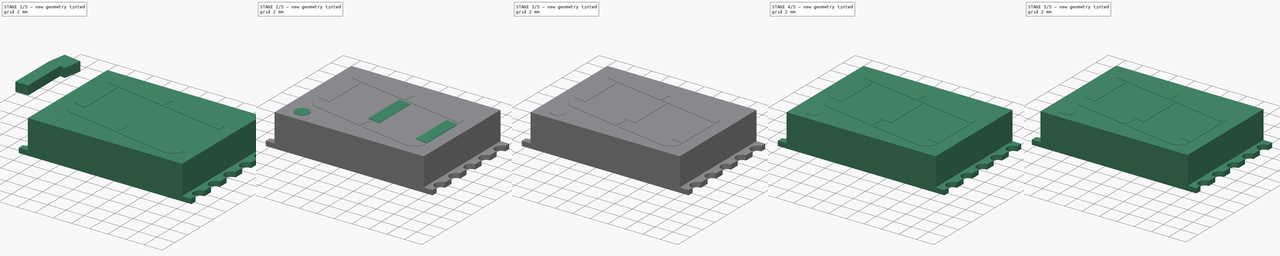
[diagram: build sequence overview — one tinted view per stage of 5, left to right]
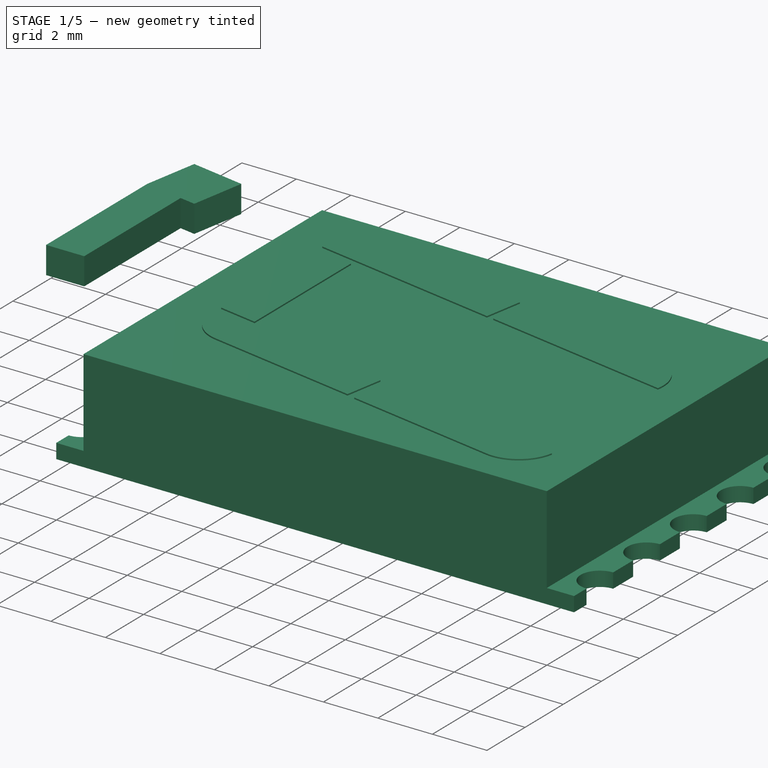
[diagram: stage 1 of 5 — iso view after this stage's code; geometry added in this stage tinted green]
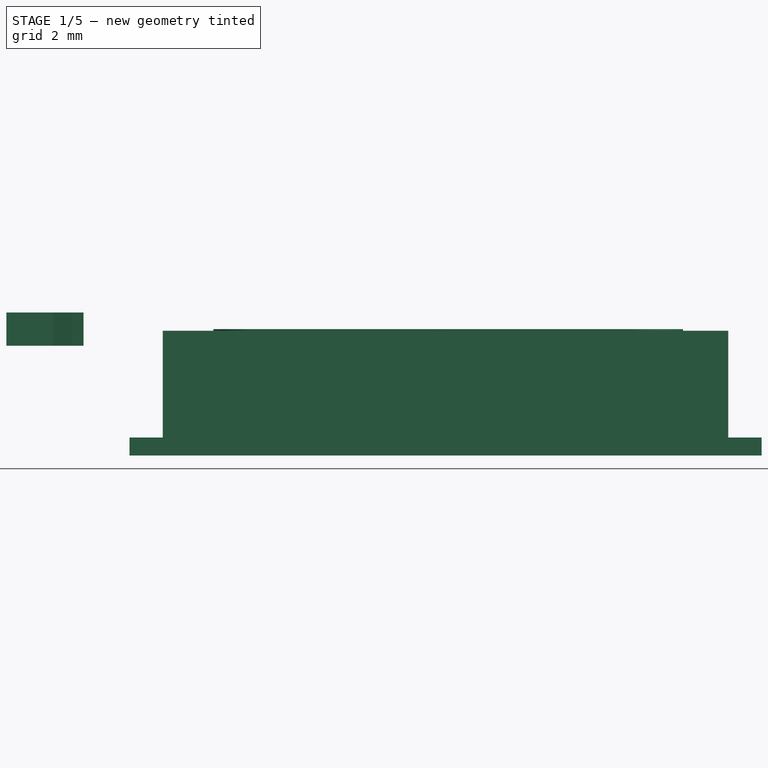
[diagram: stage 1 of 5 — front view after this stage's code; geometry added in this stage tinted green]
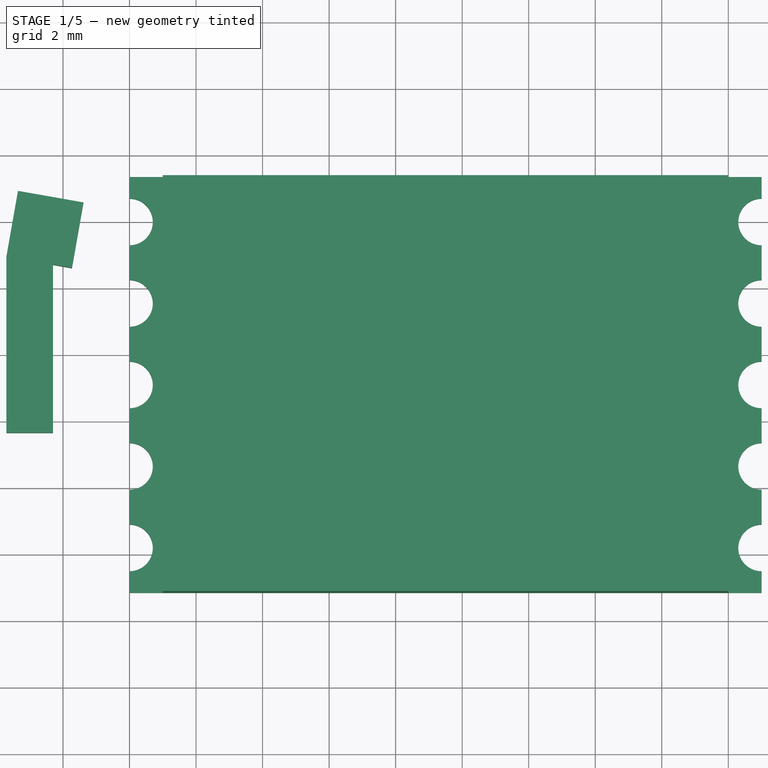
[diagram: stage 1 of 5 — top view after this stage's code; geometry added in this stage tinted green]
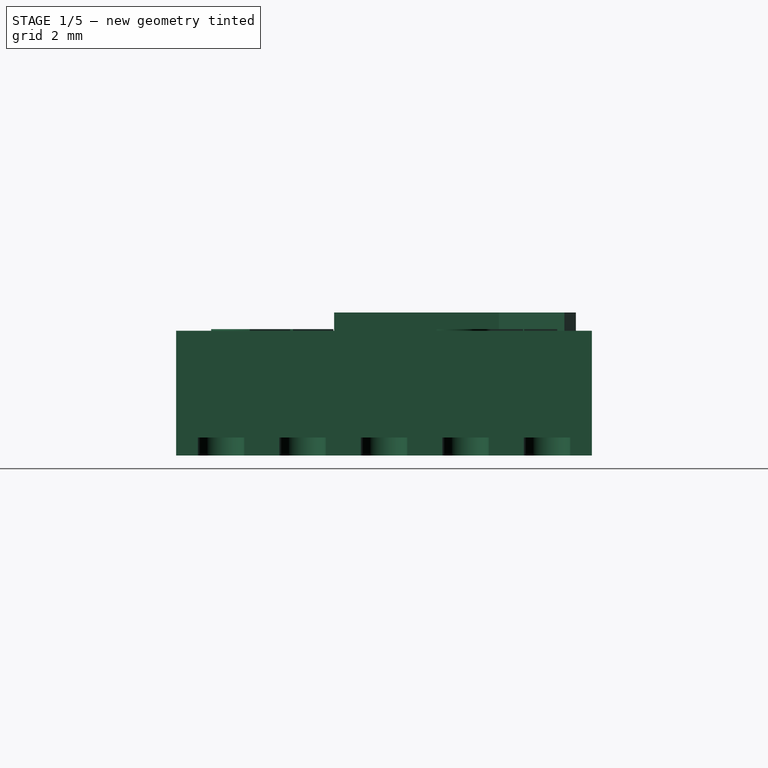
[diagram: stage 1 of 5 — right view after this stage's code; geometry added in this stage tinted green]
FCSTD DOCUMENT  (FreeCAD 0.17R11223 (Git))
Label: HDSM531_HDSM533_10
License: All rights reserved
LicenseURL: http://en.wikipedia.org/wiki/All_rights_reserved
objects: Part::Box×35, Part::Cut×28, Part::Cylinder×21, Part::MultiFuse×10, Part::Fillet×4, Sketcher::SketchObject×1, PartDesign::Pad×1, PartDesign::Body×1
note: 102 computed .brp shape members not serialized (recipe doc carries the construction recipe); baked Part::Feature solids carry a one-line shape summary decoded from their .brp

FEATURE [Sketcher::SketchObject] Sketch
  MapMode = 5
  Support = -> [XY_Plane]
  sketch-geometry (24):
    g0: LineSegment StartX=0 StartY=1.35 StartZ=0 EndX=19 EndY=1.35 EndZ=0
    g1: ArcOfCircle CenterX=0 CenterY=0 CenterZ=0 NormalX=0 NormalY=0 NormalZ=1 Radius=0.7 StartAngle=4.71239 EndAngle=7.85398
    g2: ArcOfCircle CenterX=0 CenterY=-2.45 CenterZ=0 NormalX=0 NormalY=0 NormalZ=1 Radius=0.7 StartAngle=4.71239 EndAngle=7.85398
    g3: ArcOfCircle CenterX=0 CenterY=-4.9 CenterZ=0 NormalX=0 NormalY=0 NormalZ=1 Radius=0.7 StartAngle=4.71239 EndAngle=7.85398
    g4: ArcOfCircle CenterX=0 CenterY=-7.35 CenterZ=0 NormalX=0 NormalY=0 NormalZ=1 Radius=0.7 StartAngle=4.71239 EndAngle=7.85398
    g5: ArcOfCircle CenterX=0 CenterY=-9.8 CenterZ=0 NormalX=0 NormalY=0 NormalZ=1 Radius=0.7 StartAngle=4.71239 EndAngle=7.85398
    g6: LineSegment StartX=0 StartY=1.35 StartZ=0 EndX=0 EndY=0.7 EndZ=0
    g7: LineSegment StartX=0 StartY=-0.7 StartZ=0 EndX=0 EndY=-1.75 EndZ=0
    g8: LineSegment StartX=0 StartY=-3.15 StartZ=0 EndX=0 EndY=-4.2 EndZ=0
    g9: LineSegment StartX=0 StartY=-5.6 StartZ=0 EndX=0 EndY=-6.65 EndZ=0
    g10: LineSegment StartX=0 StartY=-8.05 StartZ=0 EndX=0 EndY=-9.1 EndZ=0
    g11: ArcOfCircle CenterX=19 CenterY=0 CenterZ=0 NormalX=0 NormalY=0 NormalZ=1 Radius=0.7 StartAngle=1.5708 EndAngle=4.71239
    g12: ArcOfCircle CenterX=19 CenterY=-2.45 CenterZ=0 NormalX=0 NormalY=0 NormalZ=1 Radius=0.7 StartAngle=1.5708 EndAngle=4.71239
    g13: ArcOfCircle CenterX=19 CenterY=-4.9 CenterZ=0 NormalX=0 NormalY=0 NormalZ=1 Radius=0.7 StartAngle=1.5708 EndAngle=4.71239
    g14: ArcOfCircle CenterX=19 CenterY=-7.35 CenterZ=0 NormalX=0 NormalY=0 NormalZ=1 Radius=0.7 StartAngle=1.5708 EndAngle=4.71239
    g15: ArcOfCircle CenterX=19 CenterY=-9.8 CenterZ=0 NormalX=0 NormalY=0 NormalZ=1 Radius=0.7 StartAngle=1.5708 EndAngle=4.71239
    g16: LineSegment StartX=19 StartY=1.35 StartZ=0 EndX=19 EndY=0.7 EndZ=0
    g17: LineSegment StartX=0 StartY=-11.15 StartZ=0 EndX=19 EndY=-11.15 EndZ=0
    g18: LineSegment StartX=19 StartY=-10.5 StartZ=0 EndX=19 EndY=-11.15 EndZ=0
    g19: LineSegment StartX=19 StartY=-0.7 StartZ=0 EndX=19 EndY=-1.75 EndZ=0
    g20: LineSegment StartX=19 StartY=-3.15 StartZ=0 EndX=19 EndY=-4.2 EndZ=0
    g21: LineSegment StartX=19 StartY=-5.6 StartZ=0 EndX=19 EndY=-6.65 EndZ=0
    g22: LineSegment StartX=19 StartY=-8.05 StartZ=0 EndX=19 EndY=-9.1 EndZ=0
    g23: LineSegment StartX=0 StartY=-10.5 StartZ=0 EndX=0 EndY=-11.15 EndZ=0
  constraints (103):
    c: DistanceX(g0,g0) = 19
    c: DistanceY(g17,g0) = 12.5
    c: DistanceY(g-1,g0) = 1.35
    c: DistanceY(g1,g0) = 0.65
    c: Radius(g1) = 0.7
    c: Equal(g1, g2-g5) x4
    c: Equal(g1,g15)
    c: Equal(g1,g14)
    c: Equal(g1,g13)
    c: Equal(g1,g12)
    c: Equal(g1,g11)
    c: DistanceX(g-1,g1) = 0
    c: DistanceX(g-1,g1) = 0
    c: DistanceX(g-1,g1) = 0
    c: DistanceX(g2,g2) = 0
    c: DistanceX(g2,g2) = 0
    c: DistanceX(g3,g3) = 0
    c: DistanceX(g3,g3) = 0
    c: DistanceX(g4,g4) = 0
    c: DistanceX(g4,g4) = 0
    c: DistanceX(g5,g5) = 0
    c: DistanceX(g5,g5) = 0
    c: DistanceX(g5,g4) = 0
    c: DistanceY(g5,g4) = 2.45
    c: DistanceX(g3,g4) = 0
    c: DistanceY(g4,g3) = 2.45
    c: DistanceX(g2,g3) = 0
    c: DistanceY(g3,g2) = 2.45
    c: DistanceX(g-1,g2) = 0
    c: DistanceY(g2,g-1) = 2.45
    c: DistanceY(g7,g1) = 0
    c: DistanceX(g7,g1) = 0
    c: DistanceY(g7,g2) = 0
    c: DistanceX(g7,g2) = 0
    c: DistanceY(g0,g6) = 0
    c: DistanceX(g6,g0) = 0
    c: DistanceY(g1,g6) = 0
    c: DistanceX(g6,g1) = 0
    c: DistanceY(g2,g8) = 0
    c: DistanceX(g8,g2) = 0
    c: DistanceY(g3,g8) = 0
    c: DistanceX(g8,g3) = 0
    c: DistanceY(g9,g3) = 0
    c: DistanceX(g9,g3) = 0
    c: DistanceY(g9,g4) = 0
    c: DistanceX(g9,g4) = 0
    c: DistanceY(g10,g4) = 0
    c: DistanceX(g10,g4) = 0
    c: DistanceY(g10,g5) = 0
    c: DistanceX(g10,g5) = 0
    c: DistanceY(g5,g23) = 0
    c: DistanceX(g23,g5) = 0
    c: DistanceX(g17,g-1) = 0
    c: DistanceY(g17,g23) = 0
    c: DistanceX(g23,g17) = 0
    c: DistanceY(g17,g0) = 12.5
    c: DistanceX(g17,g17) = 19
    c: DistanceY(g-1,g0) = 1.35
    c: DistanceX(g15,g15) = 0
    c: DistanceX(g15,g15) = 0
    c: DistanceX(g14,g14) = 0
    c: DistanceX(g14,g14) = 0
    c: DistanceX(g13,g13) = 0
    c: DistanceX(g13,g13) = 0
    c: DistanceX(g12,g12) = 0
    c: DistanceX(g12,g12) = 0
    c: DistanceX(g11,g11) = 0
    c: DistanceX(g11,g11) = 0
    c: DistanceX(g11,g0) = 0
    c: DistanceX(g11,g12) = 0
    c: DistanceX(g11,g13) = 0
    c: DistanceX(g11,g14) = 0
    c: DistanceX(g11,g15) = 0
    c: DistanceY(g16,g0) = 0
    c: DistanceX(g0,g16) = 0
    c: DistanceY(g16,g11) = 0
    c: DistanceX(g11,g16) = 0
    c: DistanceX(g-1,g0) = 0
    c: DistanceY(g11,g19) = 0
    c: DistanceX(g11,g19) = 0
    c: DistanceY(g12,g19) = 0
    c: DistanceX(g12,g19) = 0
    c: DistanceY(g12,g20) = 0
    c: DistanceX(g12,g20) = 0
    c: DistanceY(g13,g20) = 0
    c: DistanceX(g13,g20) = 0
    c: DistanceX(g13,g21) = 0
    c: DistanceY(g21,g13) = 0
    c: DistanceY(g14,g21) = 0
    c: DistanceX(g14,g21) = 0
    c: DistanceX(g14,g22) = 0
    c: DistanceY(g14,g22) = 0
    c: DistanceY(g15,g22) = 0
    c: DistanceX(g15,g22) = 0
    c: DistanceY(g15,g18) = 0
    c: DistanceX(g15,g18) = 0
    c: DistanceY(g17,g18) = 0
    c: DistanceX(g17,g18) = 0
    c: DistanceY(g11,g0) = 0.65
    c: DistanceY(g12,g11) = 2.45
    c: DistanceY(g13,g12) = 2.45
    c: DistanceY(g14,g13) = 2.45
    c: DistanceY(g15,g14) = 2.45
FEATURE [PartDesign::Pad] Pad
  Length = 3.75
  Length2 = 100
  Profile = -> Sketch
  Type = 0
FEATURE [Part::Box] Box034  label="Kub034"
  AttacherType = Attacher::AttachEngine3D
  Height = 1
  Length = 7
  Placement = pos=(3.3,-1,3.3) rot=(0,0,-1;0.174533rad)
  Width = 1.4
FEATURE [Part::Box] Box035  label="Kub035"
  AttacherType = Attacher::AttachEngine3D
  Height = 1
  Length = 7
  Placement = pos=(10,-2.5,3.3) rot=(0,0,-1;0.174533rad)
  Width = 1.4
FEATURE [Part::Box] Box036  label="Kub036"
  AttacherType = Attacher::AttachEngine3D
  Height = 1
  Length = 7
  Placement = pos=(2.3,-7,3.3) rot=(0,0,-1;0.174533rad)
  Width = 1.4
FEATURE [Part::Box] Box037  label="Kub037"
  AttacherType = Attacher::AttachEngine3D
  Height = 1
  Length = 7
  Placement = pos=(10.3,-8.5,3.3) rot=(0,0,-1;0.174533rad)
  Width = 1.4
FEATURE [Part::Box] Box038  label="Kub038"
  AttacherType = Attacher::AttachEngine3D
  Height = 1
  Length = 1.4
  Placement = pos=(-3.7,-6.4,3.3) rot=(0,0,1;0rad)
  Width = 5.3
FEATURE [Part::Box] Box039  label="Kub039"
  AttacherType = Attacher::AttachEngine3D
  Height = 1
  Length = 2
  Placement = pos=(-3.7,-1.1,3.3) rot=(0,0,-1;0.174533rad)
  Width = 2
FEATURE [Part::Box] Box040  label="Kub040"
  AttacherType = Attacher::AttachEngine3D
  Height = 1
  Length = 2
  Placement = pos=(-4.62,-8.02,3.3) rot=(0,0,-1;0.174533rad)
  Width = 2
FEATURE [Part::Box] Box044  label="Kub044"
  AttacherType = Attacher::AttachEngine3D
  Height = 1
  Length = 1.4
  Placement = pos=(-3.7,-6.4,3.3) rot=(0,0,1;0rad)
  Width = 5.3
FEATURE [Part::Box] Box045  label="Kub045"
  AttacherType = Attacher::AttachEngine3D
  Height = 1
  Length = 2
  Placement = pos=(-3.7,-1.1,3.3) rot=(0,0,-1;0.174533rad)
  Width = 2
FEATURE [Part::Cut] Cut024
  Base = -> Box038
  Tool = -> Box039
FEATURE [Part::Cut] Cut025
  Base = -> Cut024
  Placement = pos=(6.25,0,-0.5) rot=(0,0,1;0rad)
  Tool = -> Box040
FEATURE [Part::Fillet] Fillet001
  Base = -> Box035
  Edges = 1 edges r=1.39: [Edge7]
  Placement = pos=(-0.3,0.4,-0.5) rot=(0,0,1;0rad)
FEATURE [Part::Fillet] Fillet002
  Base = -> Box034
  Edges = 1 edges r=1.39: [Edge3]
  Placement = pos=(-0.75,0.15,-0.5) rot=(0,0,1;0rad)
FEATURE [Part::Fillet] Fillet003
  Base = -> Box037
  Edges = 1 edges r=1.39: [Edge5]
  Placement = pos=(-0.8,-0.6,-0.5) rot=(0,0,1;0rad)
FEATURE [Part::Fillet] Fillet004
  Base = -> Box036
  Edges = 1 edges r=1.39: [Edge1]
  Placement = pos=(0,-0.8,-0.5) rot=(0,0,1;0rad)
FEATURE [Part::Box] Box  label="Kub047"
  AttacherType = Attacher::AttachEngine3D
  Height = 3.25
  Length = 1
  Placement = pos=(0,-11.15,0.54) rot=(0,0,1;0rad)
  Width = 12.5
FEATURE [Part::Box] Box047  label="Kub048"
  AttacherType = Attacher::AttachEngine3D
  Height = 3.25
  Length = 1
  Placement = pos=(18,-11.15,0.54) rot=(0,0,1;0rad)
  Width = 12.5
FEATURE [Part::Cut] Cut026
  Base = -> Body
  Tool = -> Box
FEATURE [Part::Cut] Cut027
  Base = -> Cut026
  Tool = -> Box047
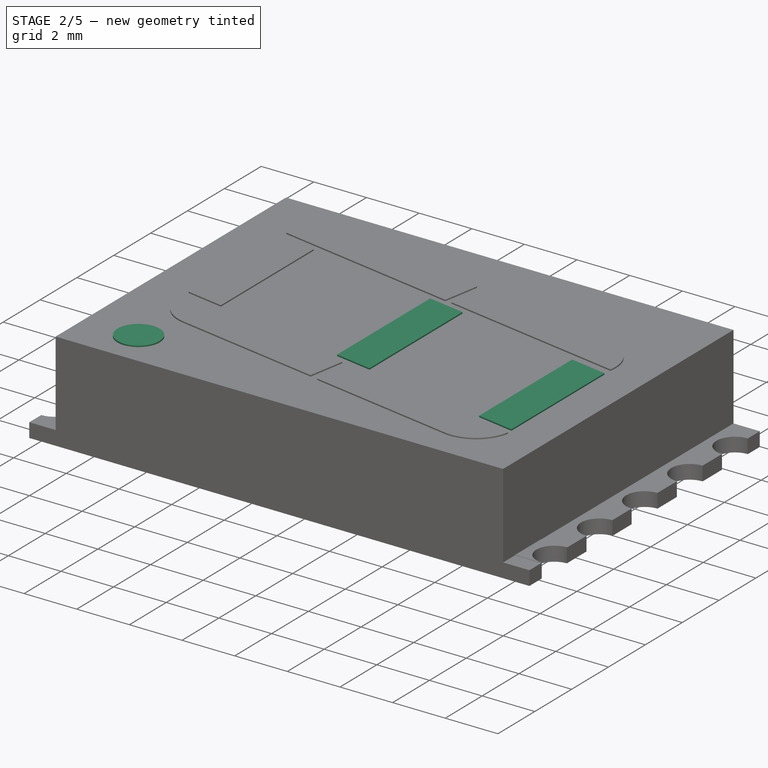
[diagram: stage 2 of 5 — iso view after this stage's code; geometry added in this stage tinted green]
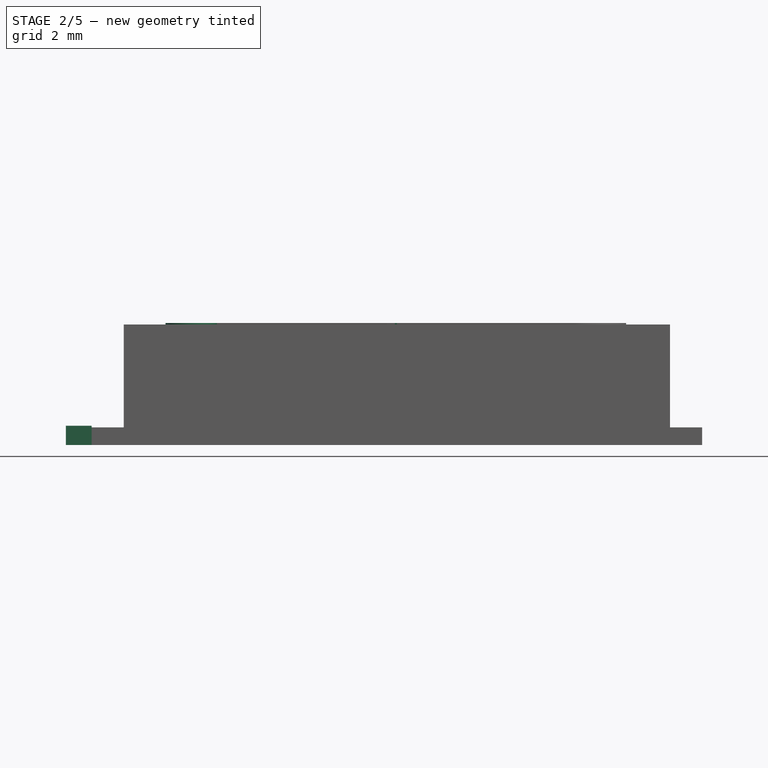
[diagram: stage 2 of 5 — front view after this stage's code; geometry added in this stage tinted green]
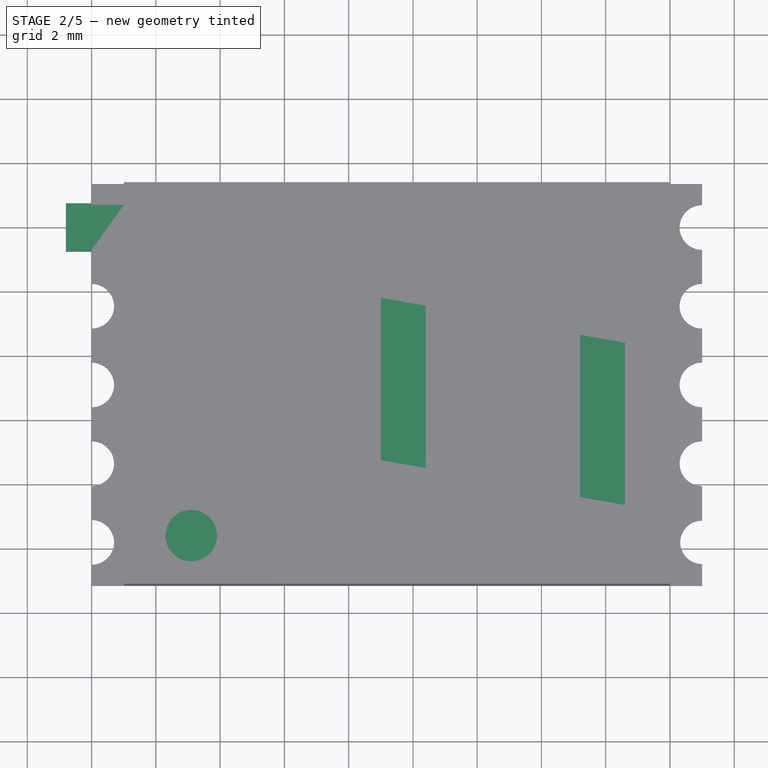
[diagram: stage 2 of 5 — top view after this stage's code; geometry added in this stage tinted green]
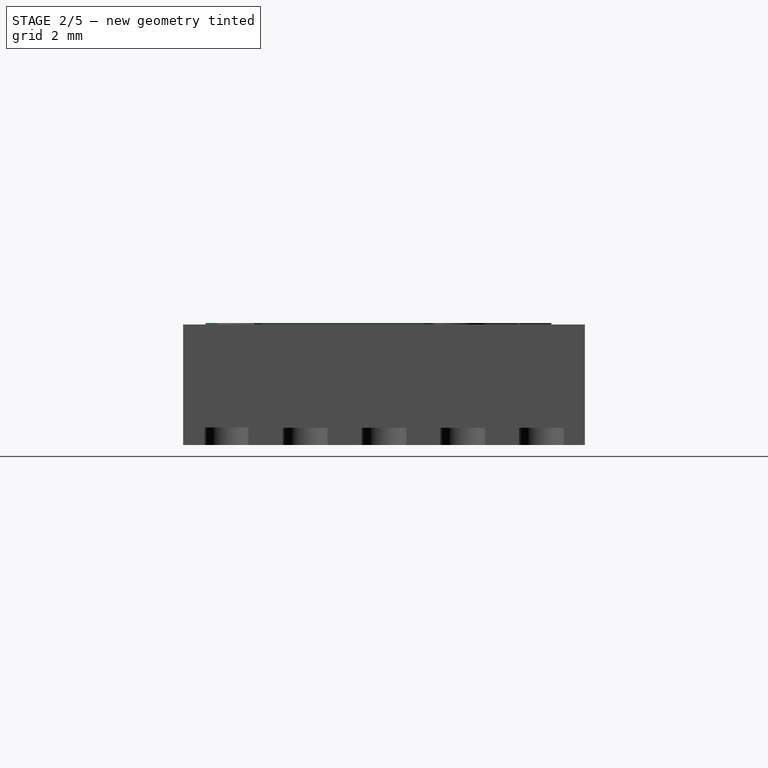
[diagram: stage 2 of 5 — right view after this stage's code; geometry added in this stage tinted green]
FEATURE [Part::Cylinder] Cylinder016
  Angle = 360
  AttacherType = Attacher::AttachEngine3D
  Height = 0.5
  Radius = 0.7
FEATURE [Part::Box] Box029  label="Kub029"
  AttacherType = Attacher::AttachEngine3D
  Height = 0.05
  Length = 1
  Placement = pos=(0,-0.7,0.5) rot=(0,0,1;0rad)
  Width = 1.4
FEATURE [Part::MultiFuse] Fusion008
  Shapes = -> [Box029,Cylinder016]
FEATURE [Part::Box] Box030  label="Kub030"
  AttacherType = Attacher::AttachEngine3D
  Height = 0.6
  Length = 0.8
  Placement = pos=(-0.8,-0.75,0) rot=(0,0,1;0rad)
  Width = 1.5
FEATURE [Part::Cylinder] Cylinder018
  Angle = 360
  AttacherType = Attacher::AttachEngine3D
  Height = 0.5
  Radius = 0.7
FEATURE [Part::Box] Box031  label="Kub031"
  AttacherType = Attacher::AttachEngine3D
  Height = 0.05
  Length = 1
  Placement = pos=(0,-0.7,0.5) rot=(0,0,1;0rad)
  Width = 1.4
FEATURE [Part::Cylinder] Cylinder019
  Angle = 360
  AttacherType = Attacher::AttachEngine3D
  Height = 0.6
  Radius = 0.68
FEATURE [Part::MultiFuse] Fusion009
  Shapes = -> [Box031,Cylinder018]
FEATURE [Part::Cut] Cut018
  Base = -> Fusion009
  Tool = -> Cylinder019
FEATURE [Part::Box] Box032  label="Kub032"
  AttacherType = Attacher::AttachEngine3D
  Height = 0.6
  Length = 0.8
  Placement = pos=(-0.8,-0.75,0) rot=(0,0,1;0rad)
  Width = 1.5
FEATURE [Part::Cut] Cut019
  Base = -> Cut018
  Placement = pos=(19,-9.8,0) rot=(0,0,1;3.14159rad)
  Tool = -> Box032
FEATURE [Part::Cylinder] Cylinder020
  Angle = 360
  AttacherType = Attacher::AttachEngine3D
  Height = 1
  Placement = pos=(3.1,-9.65,2.8) rot=(0,0,1;0rad)
  Radius = 0.8
FEATURE [Part::Box] Box041  label="Kub041"
  AttacherType = Attacher::AttachEngine3D
  Height = 1
  Length = 1.4
  Placement = pos=(-0.7,-6.4,3.3) rot=(0,0,1;0rad)
  Width = 5.3
FEATURE [Part::Box] Box042  label="Kub042"
  AttacherType = Attacher::AttachEngine3D
  Height = 1
  Length = 2
  Placement = pos=(-0.7,-1.1,3.3) rot=(0,0,-1;0.174533rad)
  Width = 2
FEATURE [Part::Box] Box043  label="Kub043"
  AttacherType = Attacher::AttachEngine3D
  Height = 1
  Length = 2
  Placement = pos=(-1.62,-8.02,3.3) rot=(0,0,-1;0.174533rad)
  Width = 2
FEATURE [Part::Cut] Cut020
  Base = -> Box041
  Tool = -> Box042
FEATURE [Part::Cut] Cut021
  Base = -> Cut020
  Placement = pos=(15.9,-2.3,-0.5) rot=(0,0,1;0rad)
  Tool = -> Box043
FEATURE [Part::Box] Box046  label="Kub046"
  AttacherType = Attacher::AttachEngine3D
  Height = 1
  Length = 2
  Placement = pos=(-4.62,-8.02,3.3) rot=(0,0,-1;0.174533rad)
  Width = 2
FEATURE [Part::Cut] Cut022
  Base = -> Box044
  Tool = -> Box045
FEATURE [Part::Cut] Cut023
  Base = -> Cut022
  Placement = pos=(12.7,-1.15,-0.5) rot=(0,0,1;0rad)
  Tool = -> Box046
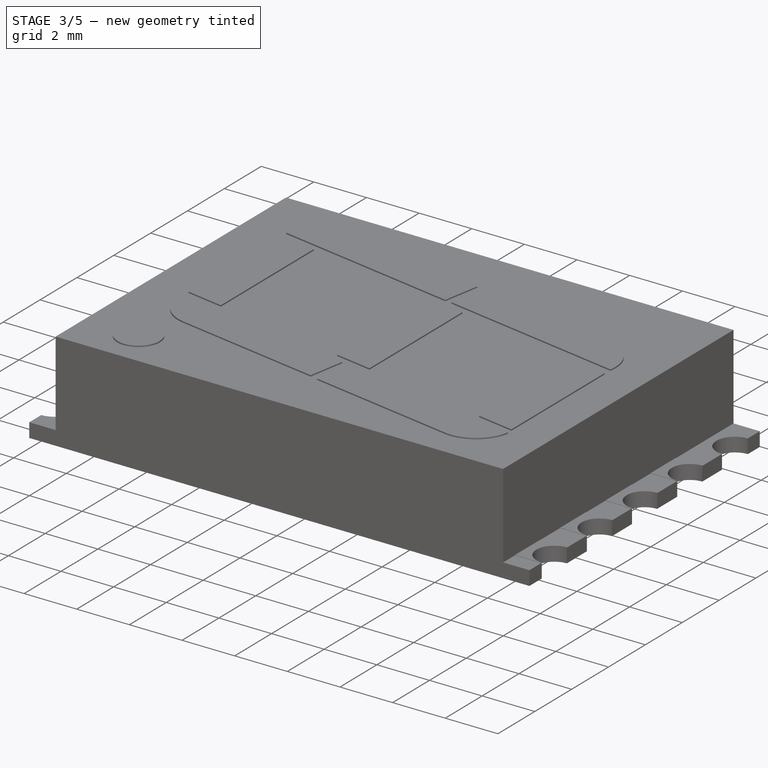
[diagram: stage 3 of 5 — iso view after this stage's code; geometry added in this stage tinted green]
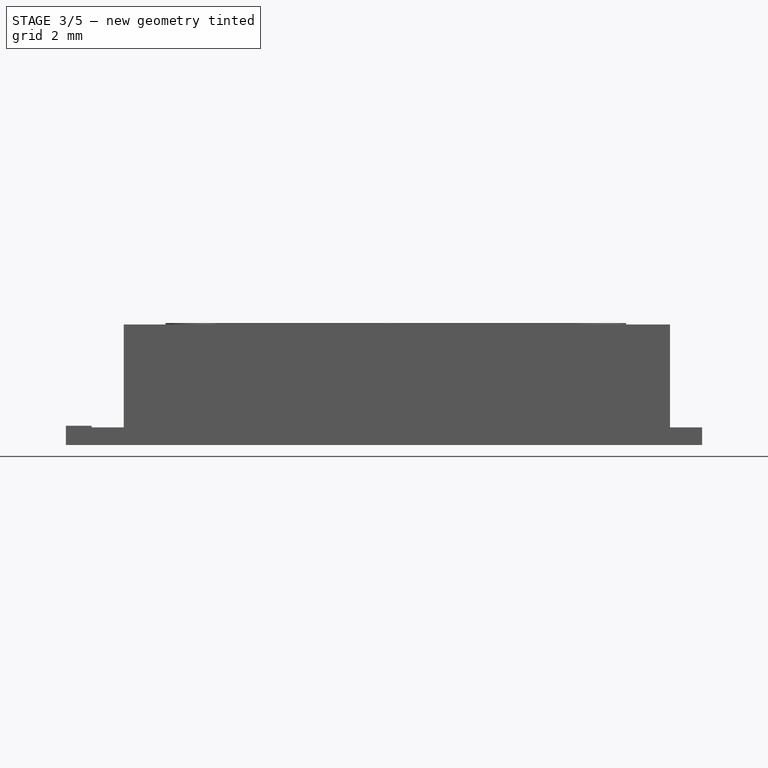
[diagram: stage 3 of 5 — front view after this stage's code; geometry added in this stage tinted green]
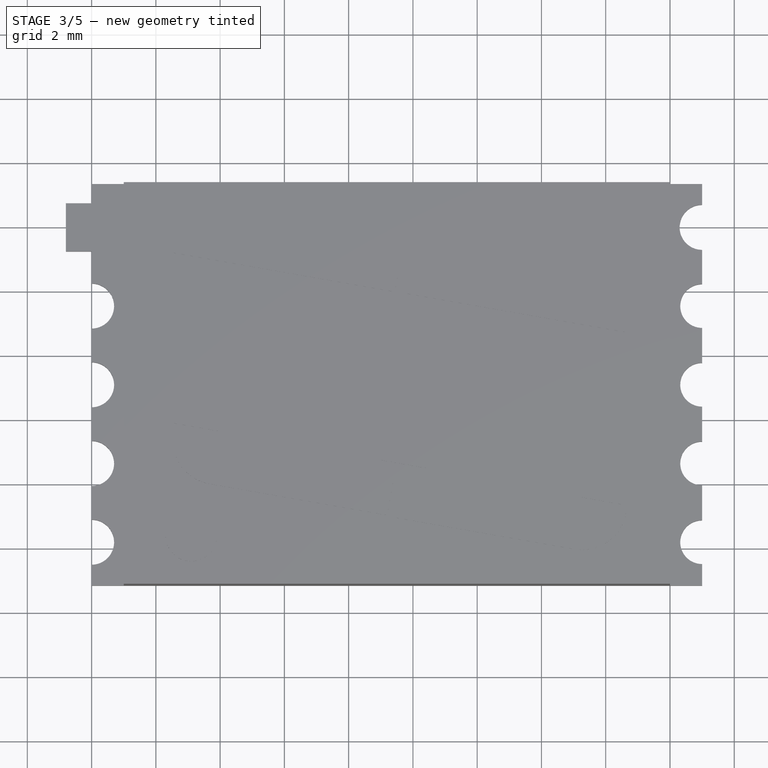
[diagram: stage 3 of 5 — top view after this stage's code; geometry added in this stage tinted green]
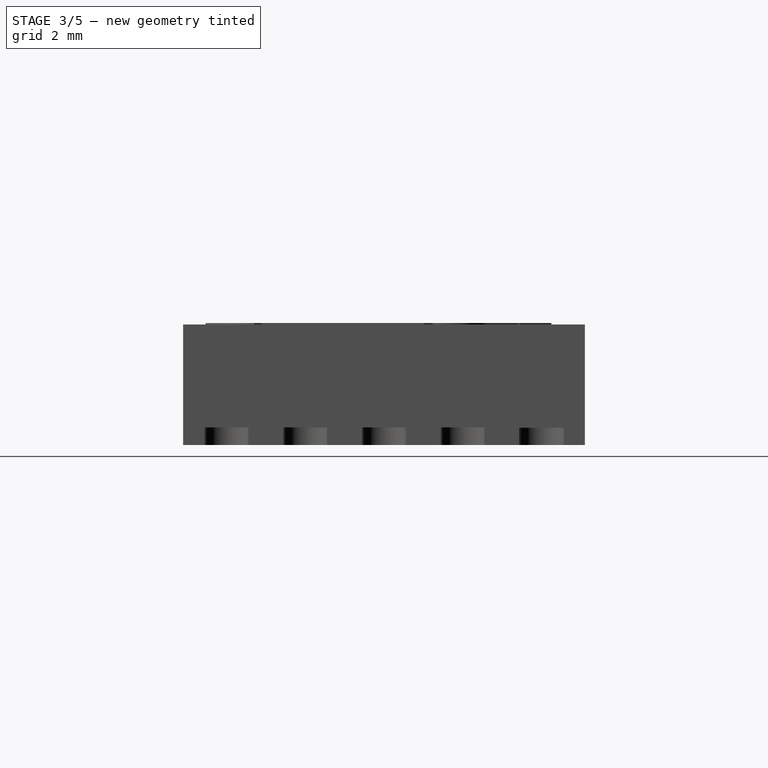
[diagram: stage 3 of 5 — right view after this stage's code; geometry added in this stage tinted green]
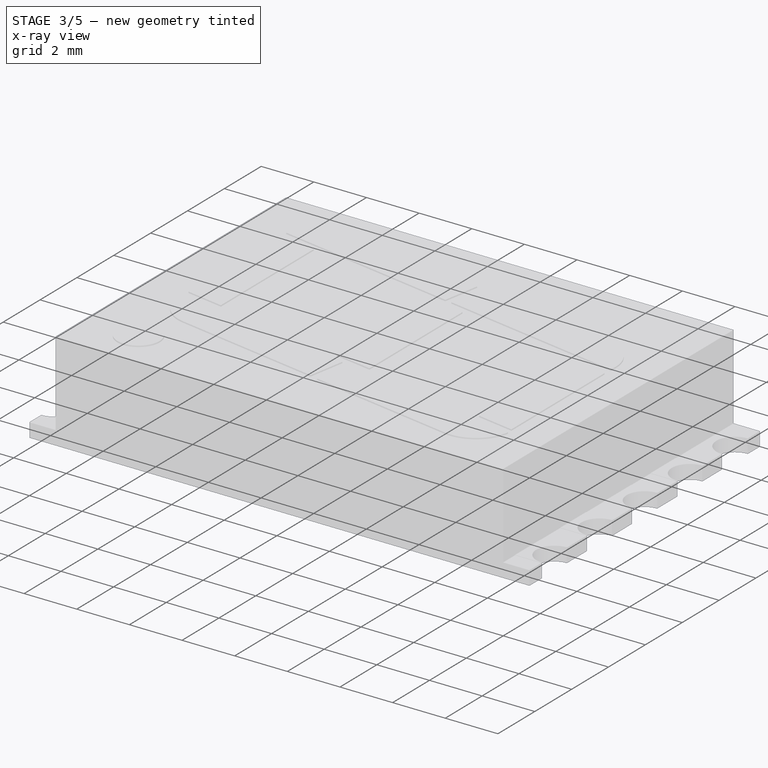
[diagram: stage 3 of 5 — x-ray composite at the iso view; earlier geometry ghosted, this stage's added geometry solid]
FEATURE [Part::Box] Box023  label="Kub023"
  AttacherType = Attacher::AttachEngine3D
  Height = 0.05
  Length = 1
  Placement = pos=(0,-0.7,0.5) rot=(0,0,1;0rad)
  Width = 1.4
FEATURE [Part::Box] Box024  label="Kub024"
  AttacherType = Attacher::AttachEngine3D
  Height = 0.6
  Length = 0.8
  Placement = pos=(-0.8,-0.75,0) rot=(0,0,1;0rad)
  Width = 1.5
FEATURE [Part::Cylinder] Cylinder012
  Angle = 360
  AttacherType = Attacher::AttachEngine3D
  Height = 0.5
  Radius = 0.7
FEATURE [Part::Box] Box025  label="Kub025"
  AttacherType = Attacher::AttachEngine3D
  Height = 0.05
  Length = 1
  Placement = pos=(0,-0.7,0.5) rot=(0,0,1;0rad)
  Width = 1.4
FEATURE [Part::Cylinder] Cylinder013
  Angle = 360
  AttacherType = Attacher::AttachEngine3D
  Height = 0.6
  Radius = 0.68
FEATURE [Part::MultiFuse] Fusion006
  Shapes = -> [Box025,Cylinder012]
FEATURE [Part::Cut] Cut012
  Base = -> Fusion006
  Tool = -> Cylinder013
FEATURE [Part::Box] Box026  label="Kub026"
  AttacherType = Attacher::AttachEngine3D
  Height = 0.6
  Length = 0.8
  Placement = pos=(-0.8,-0.75,0) rot=(0,0,1;0rad)
  Width = 1.5
FEATURE [Part::Cut] Cut013
  Base = -> Cut012
  Placement = pos=(19,-2.45,0) rot=(0,0,1;3.14159rad)
  Tool = -> Box026
FEATURE [Part::Cylinder] Cylinder014
  Angle = 360
  AttacherType = Attacher::AttachEngine3D
  Height = 0.5
  Radius = 0.7
FEATURE [Part::Box] Box027  label="Kub027"
  AttacherType = Attacher::AttachEngine3D
  Height = 0.05
  Length = 1
  Placement = pos=(0,-0.7,0.5) rot=(0,0,1;0rad)
  Width = 1.4
FEATURE [Part::Cylinder] Cylinder015
  Angle = 360
  AttacherType = Attacher::AttachEngine3D
  Height = 0.6
  Radius = 0.68
FEATURE [Part::MultiFuse] Fusion007
  Shapes = -> [Box027,Cylinder014]
FEATURE [Part::Cut] Cut014
  Base = -> Fusion007
  Tool = -> Cylinder015
FEATURE [Part::Box] Box028  label="Kub028"
  AttacherType = Attacher::AttachEngine3D
  Height = 0.6
  Length = 0.8
  Placement = pos=(-0.8,-0.75,0) rot=(0,0,1;0rad)
  Width = 1.5
FEATURE [Part::Cut] Cut015
  Base = -> Cut014
  Placement = pos=(19,-4.9,0) rot=(0,0,1;3.14159rad)
  Tool = -> Box028
FEATURE [Part::Cylinder] Cylinder017
  Angle = 360
  AttacherType = Attacher::AttachEngine3D
  Height = 0.6
  Radius = 0.68
FEATURE [Part::Cut] Cut016
  Base = -> Fusion008
  Tool = -> Cylinder017
FEATURE [Part::Cut] Cut017
  Base = -> Cut016
  Placement = pos=(19,-7.35,0) rot=(0,0,1;3.14159rad)
  Tool = -> Box030
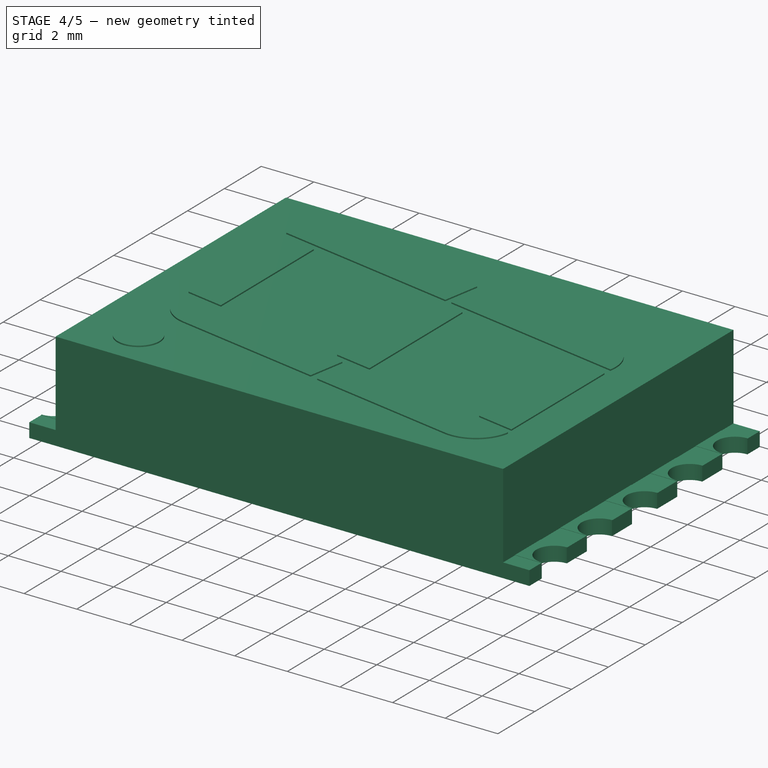
[diagram: stage 4 of 5 — iso view after this stage's code; geometry added in this stage tinted green]
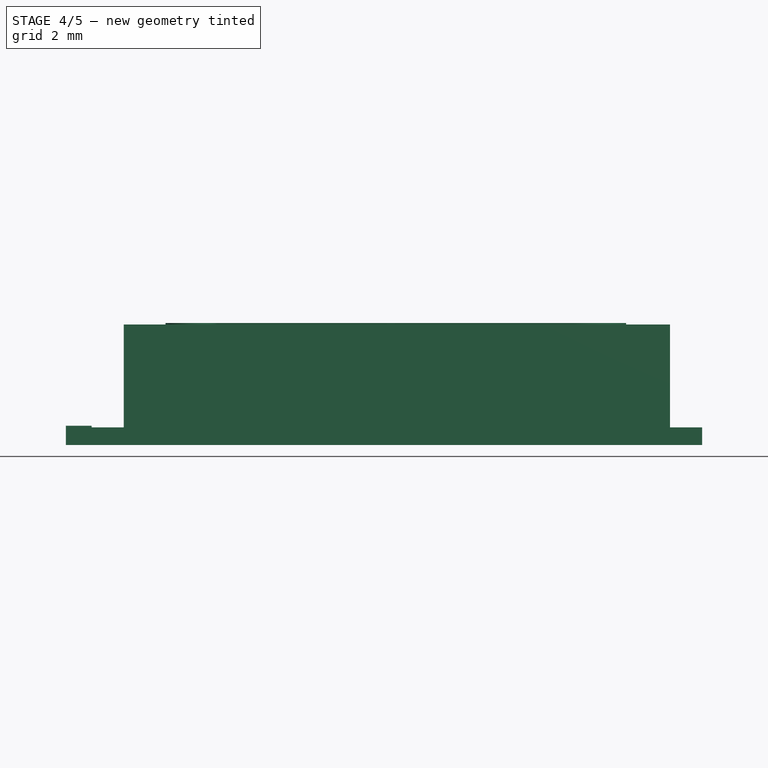
[diagram: stage 4 of 5 — front view after this stage's code; geometry added in this stage tinted green]
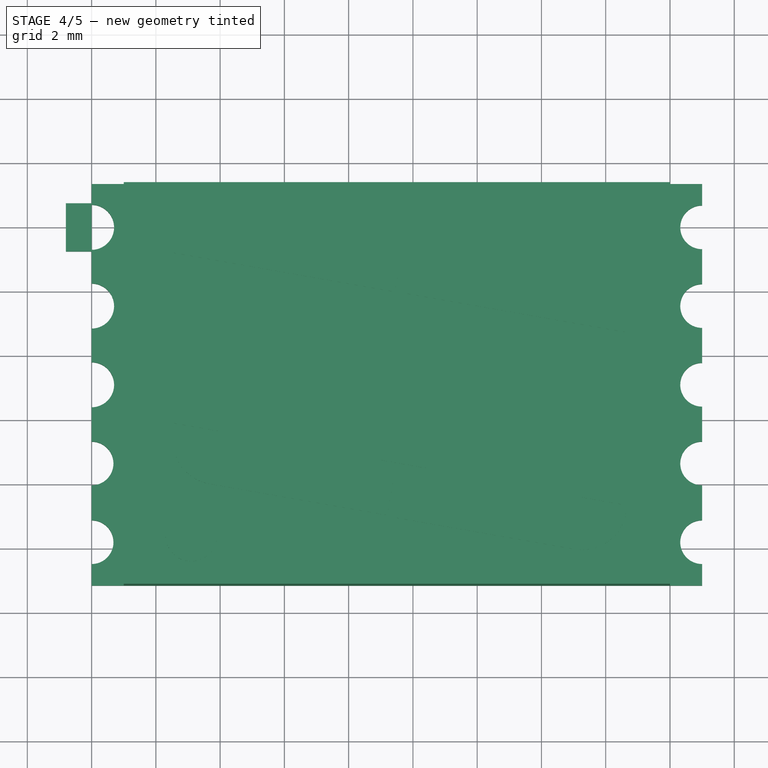
[diagram: stage 4 of 5 — top view after this stage's code; geometry added in this stage tinted green]
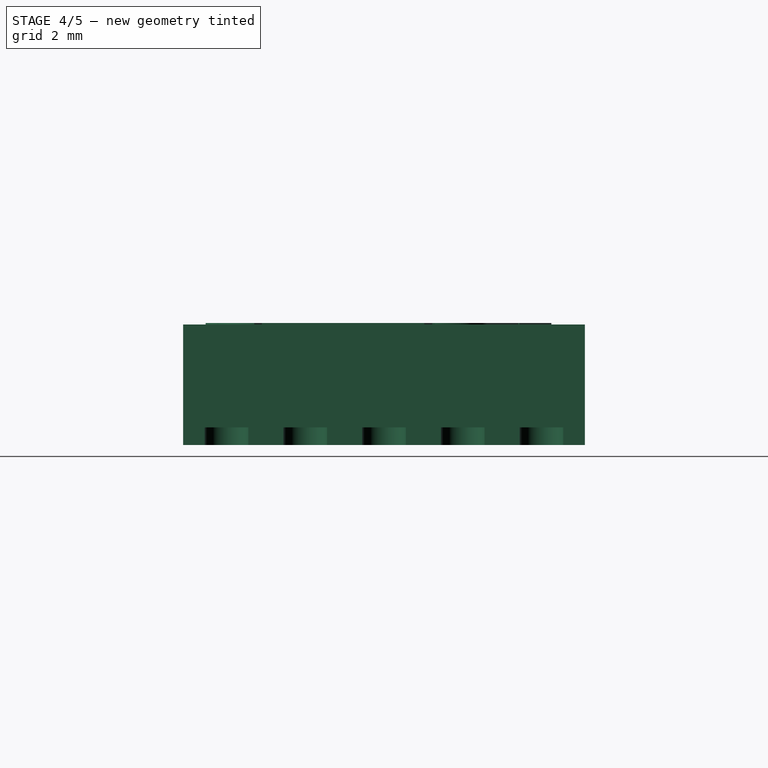
[diagram: stage 4 of 5 — right view after this stage's code; geometry added in this stage tinted green]
FEATURE [Part::Box] Box011  label="Kub011"
  AttacherType = Attacher::AttachEngine3D
  Height = 0.6
  Length = 0.8
  Placement = pos=(-0.8,-0.75,0) rot=(0,0,1;0rad)
  Width = 1.5
FEATURE [Part::Cylinder] Cylinder006
  Angle = 360
  AttacherType = Attacher::AttachEngine3D
  Height = 0.5
  Radius = 0.7
FEATURE [Part::Box] Box012  label="Kub012"
  AttacherType = Attacher::AttachEngine3D
  Height = 0.05
  Length = 1
  Placement = pos=(0,-0.7,0.5) rot=(0,0,1;0rad)
  Width = 1.4
FEATURE [Part::Cylinder] Cylinder007
  Angle = 360
  AttacherType = Attacher::AttachEngine3D
  Height = 0.6
  Radius = 0.68
FEATURE [Part::MultiFuse] Fusion003
  Shapes = -> [Box012,Cylinder006]
FEATURE [Part::Cut] Cut006
  Base = -> Fusion003
  Tool = -> Cylinder007
FEATURE [Part::Box] Box013  label="Kub013"
  AttacherType = Attacher::AttachEngine3D
  Height = 0.6
  Length = 0.8
  Placement = pos=(-0.8,-0.75,0) rot=(0,0,1;0rad)
  Width = 1.5
FEATURE [Part::Cut] Cut007
  Base = -> Cut006
  Placement = pos=(0,-7.35,0) rot=(0,0,1;0rad)
  Tool = -> Box013
FEATURE [Part::Cylinder] Cylinder008
  Angle = 360
  AttacherType = Attacher::AttachEngine3D
  Height = 0.5
  Radius = 0.7
FEATURE [Part::Box] Box014  label="Kub014"
  AttacherType = Attacher::AttachEngine3D
  Height = 0.05
  Length = 1
  Placement = pos=(0,-0.7,0.5) rot=(0,0,1;0rad)
  Width = 1.4
FEATURE [Part::Cylinder] Cylinder009
  Angle = 360
  AttacherType = Attacher::AttachEngine3D
  Height = 0.6
  Radius = 0.68
FEATURE [Part::MultiFuse] Fusion004
  Shapes = -> [Box014,Cylinder008]
FEATURE [Part::Cut] Cut008
  Base = -> Fusion004
  Tool = -> Cylinder009
FEATURE [Part::Box] Box015  label="Kub015"
  AttacherType = Attacher::AttachEngine3D
  Height = 0.6
  Length = 0.8
  Placement = pos=(-0.8,-0.75,0) rot=(0,0,1;0rad)
  Width = 1.5
FEATURE [Part::Cut] Cut009
  Base = -> Cut008
  Placement = pos=(0,-9.8,0) rot=(0,0,1;0rad)
  Tool = -> Box015
FEATURE [Part::Cylinder] Cylinder010
  Angle = 360
  AttacherType = Attacher::AttachEngine3D
  Height = 0.5
  Radius = 0.7
FEATURE [Part::Cylinder] Cylinder011
  Angle = 360
  AttacherType = Attacher::AttachEngine3D
  Height = 0.6
  Radius = 0.68
FEATURE [Part::MultiFuse] Fusion005
  Shapes = -> [Box023,Cylinder010]
FEATURE [Part::Cut] Cut010
  Base = -> Fusion005
  Tool = -> Cylinder011
FEATURE [Part::Cut] Cut011
  Base = -> Cut010
  Placement = pos=(19,0,0) rot=(0,0,1;3.14159rad)
  Tool = -> Box024
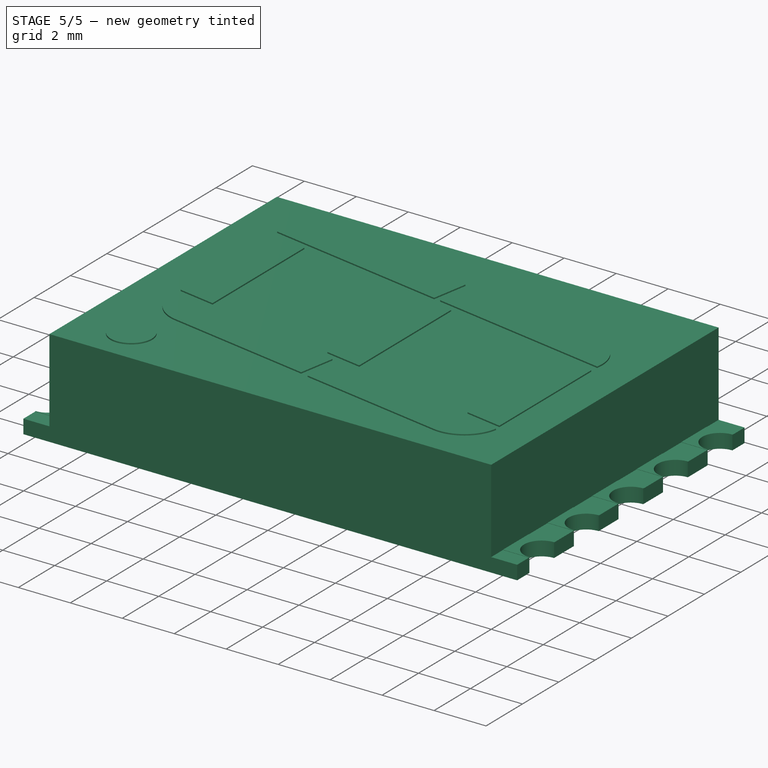
[diagram: stage 5 of 5 — iso view after this stage's code; geometry added in this stage tinted green]
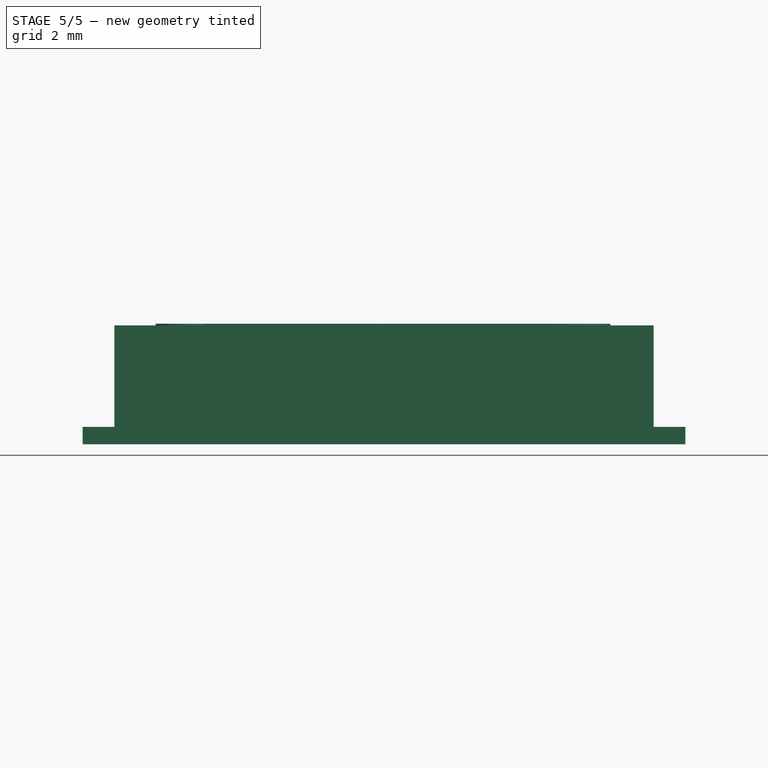
[diagram: stage 5 of 5 — front view after this stage's code; geometry added in this stage tinted green]
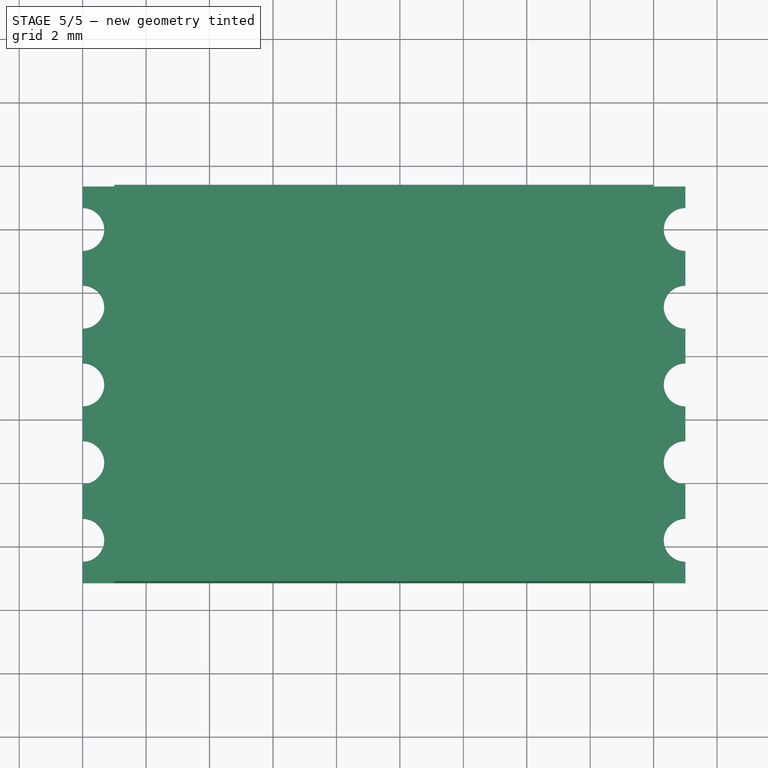
[diagram: stage 5 of 5 — top view after this stage's code; geometry added in this stage tinted green]
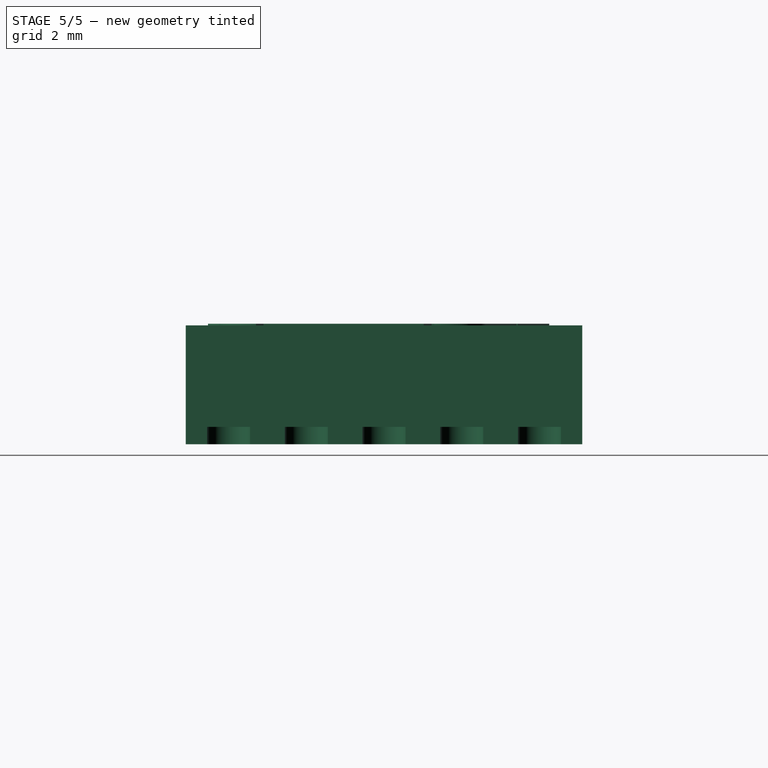
[diagram: stage 5 of 5 — right view after this stage's code; geometry added in this stage tinted green]
FEATURE [PartDesign::Body] Body
  Group = -> [Sketch,Pad]
  Origin = -> BodyOrigin
  Tip = -> Pad
FEATURE [Part::Cylinder] Cylinder
  Angle = 360
  AttacherType = Attacher::AttachEngine3D
  Height = 0.5
  Radius = 0.7
FEATURE [Part::Box] Box006  label="Kub"
  AttacherType = Attacher::AttachEngine3D
  Height = 0.05
  Length = 1
  Placement = pos=(0,-0.7,0.5) rot=(0,0,1;0rad)
  Width = 1.4
FEATURE [Part::Cylinder] Cylinder001
  Angle = 360
  AttacherType = Attacher::AttachEngine3D
  Height = 0.6
  Radius = 0.68
FEATURE [Part::MultiFuse] Fusion
  Shapes = -> [Box006,Cylinder]
FEATURE [Part::Cut] Cut
  Base = -> Fusion
  Tool = -> Cylinder001
FEATURE [Part::Box] Box007  label="Kub007"
  AttacherType = Attacher::AttachEngine3D
  Height = 0.6
  Length = 0.8
  Placement = pos=(-0.8,-0.75,0) rot=(0,0,1;0rad)
  Width = 1.5
FEATURE [Part::Cut] Cut001
  Base = -> Cut
  Tool = -> Box007
FEATURE [Part::Cylinder] Cylinder002
  Angle = 360
  AttacherType = Attacher::AttachEngine3D
  Height = 0.5
  Radius = 0.7
FEATURE [Part::Box] Box008  label="Kub008"
  AttacherType = Attacher::AttachEngine3D
  Height = 0.05
  Length = 1
  Placement = pos=(0,-0.7,0.5) rot=(0,0,1;0rad)
  Width = 1.4
FEATURE [Part::Cylinder] Cylinder003
  Angle = 360
  AttacherType = Attacher::AttachEngine3D
  Height = 0.6
  Radius = 0.68
FEATURE [Part::MultiFuse] Fusion001
  Shapes = -> [Box008,Cylinder002]
FEATURE [Part::Cut] Cut002
  Base = -> Fusion001
  Tool = -> Cylinder003
FEATURE [Part::Box] Box009  label="Kub009"
  AttacherType = Attacher::AttachEngine3D
  Height = 0.6
  Length = 0.8
  Placement = pos=(-0.8,-0.75,0) rot=(0,0,1;0rad)
  Width = 1.5
FEATURE [Part::Cut] Cut003
  Base = -> Cut002
  Placement = pos=(0,-2.45,0) rot=(0,0,1;0rad)
  Tool = -> Box009
FEATURE [Part::Cylinder] Cylinder004
  Angle = 360
  AttacherType = Attacher::AttachEngine3D
  Height = 0.5
  Radius = 0.7
FEATURE [Part::Box] Box010  label="Kub010"
  AttacherType = Attacher::AttachEngine3D
  Height = 0.05
  Length = 1
  Placement = pos=(0,-0.7,0.5) rot=(0,0,1;0rad)
  Width = 1.4
FEATURE [Part::Cylinder] Cylinder005
  Angle = 360
  AttacherType = Attacher::AttachEngine3D
  Height = 0.6
  Radius = 0.68
FEATURE [Part::MultiFuse] Fusion002
  Shapes = -> [Box010,Cylinder004]
FEATURE [Part::Cut] Cut004
  Base = -> Fusion002
  Tool = -> Cylinder005
FEATURE [Part::Cut] Cut005
  Base = -> Cut004
  Placement = pos=(0,-4.9,0) rot=(0,0,1;0rad)
  Tool = -> Box011
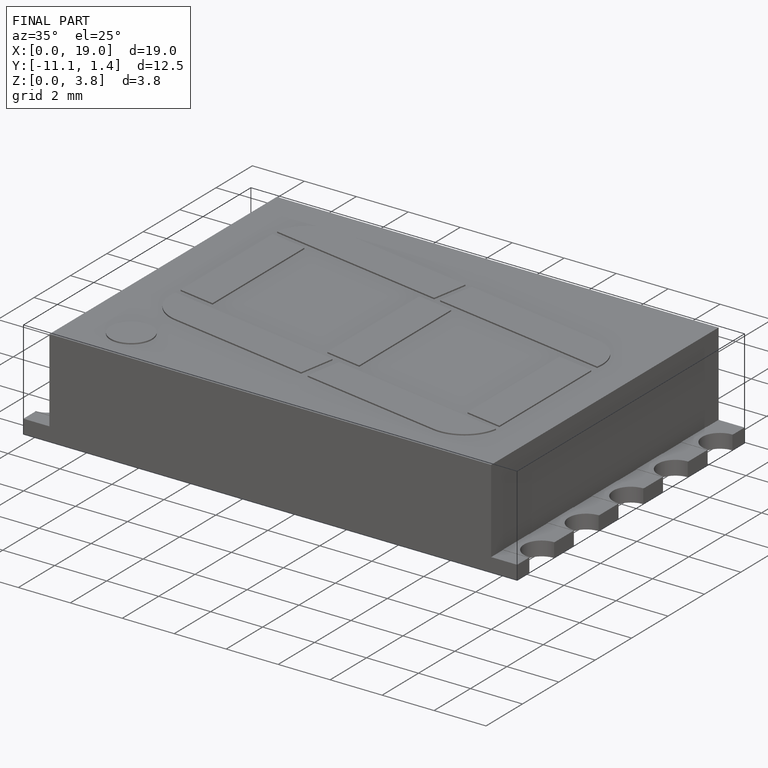
[diagram: finished part — iso view with bounding-box wireframe]
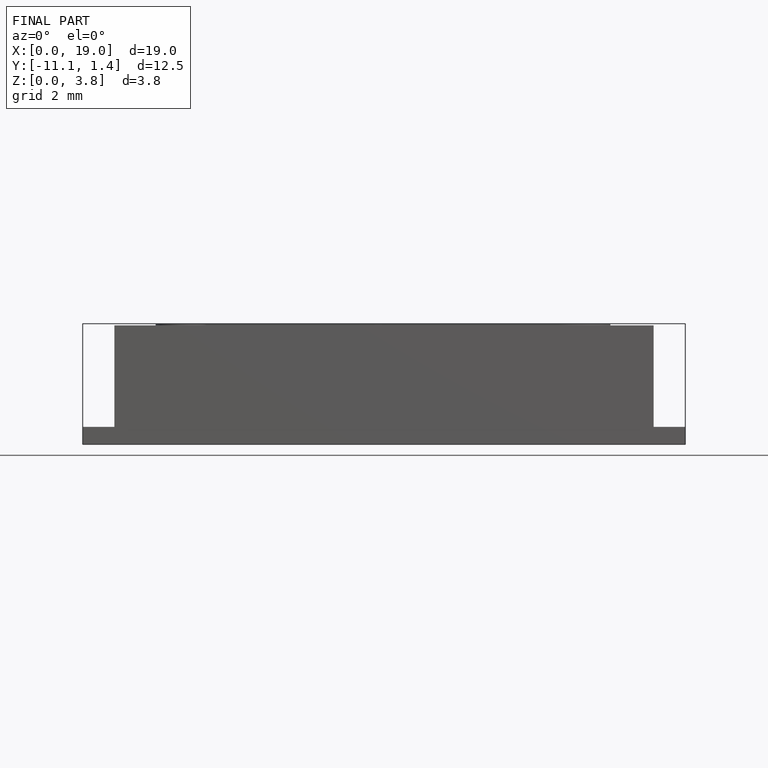
[diagram: finished part — front view with bounding-box wireframe]
